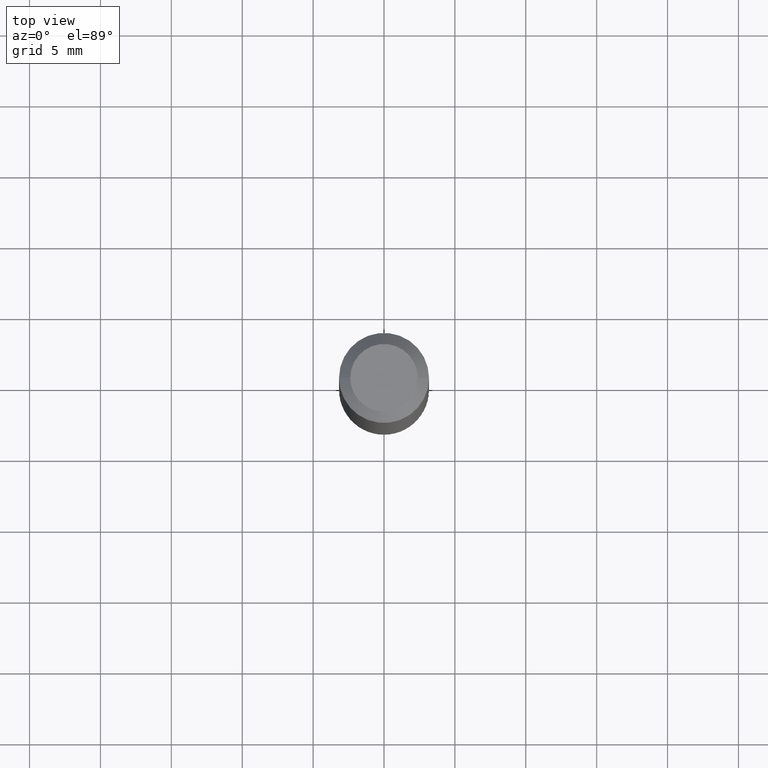
[diagram: clean part render]
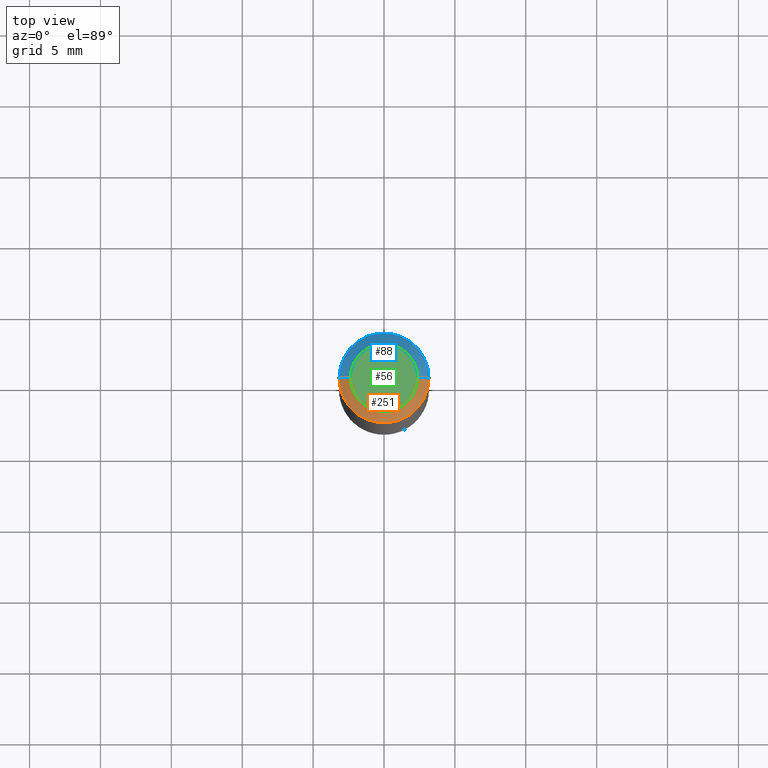
[diagram: same view with three faces highlighted in distinct colors, each labeled with its STEP entity id]
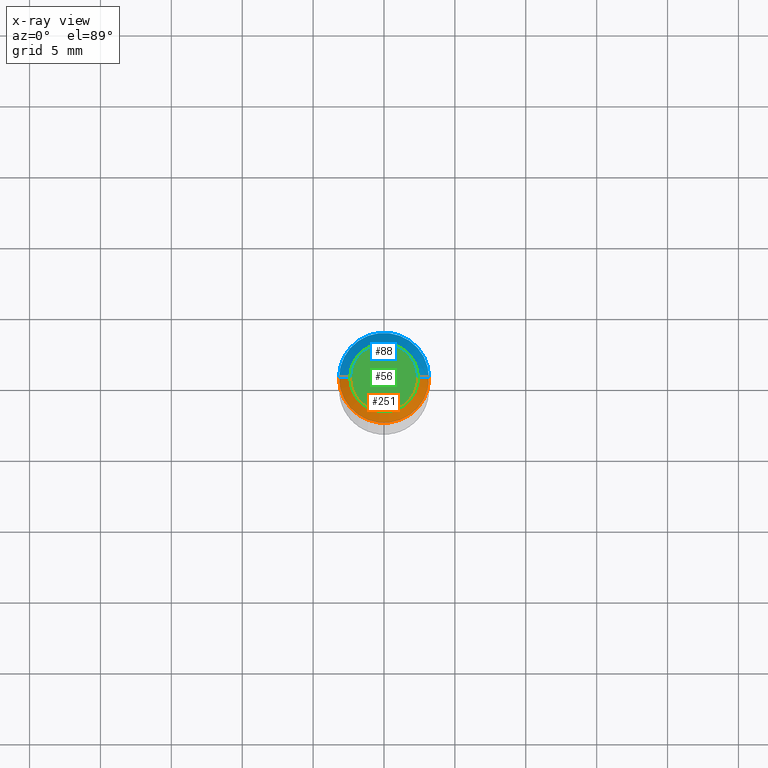
[diagram: x-ray of the same camera — body ghosted, the three highlighted faces saturated]
A machine part, top view with three faces highlighted in distinct colors.
The next image is the same camera in x-ray (body ghosted, the three faces saturated) — at least one of them is partly hidden behind the body in this view.
Their STEP definitions:

[orange] entity #251 — the highlighted conical surface has half-angle 45 deg.
#11 = VERTEX_POINT ( 'NONE', #14 ) ;
#14 = CARTESIAN_POINT ( 'NONE',  ( 0.1250000000000000000, -9.819791265496324395E-16, -0.03125000000000021511 ) ) ;
#26 = VERTEX_POINT ( 'NONE', #334 ) ;
#31 = ORIENTED_EDGE ( 'NONE', *, *, #133, .T. ) ;
#36 = DIRECTION ( 'NONE',  ( -2.445468806185136597E-29, 3.491481338843145583E-15, 1.000000000000000000 ) ) ;
#48 = VECTOR ( 'NONE', #156, 39.37007874015748143 ) ;
#66 = EDGE_CURVE ( 'NONE', #26, #213, #318, .T. ) ;
#67 = CARTESIAN_POINT ( 'NONE',  ( -0.1250000000000000000, 7.637615428719342382E-16, -0.03125000000000021511 ) ) ;
#72 = DIRECTION ( 'NONE',  ( 1.000000000000000000, -6.982962677686266711E-15, 4.875989565238656407E-29 ) ) ;
#77 = EDGE_CURVE ( 'NONE', #126, #11, #312, .T. ) ;
#110 = CONICAL_SURFACE ( 'NONE', #170, 0.1250000000000000000, 0.7853981633974449483 ) ;
#117 = ORIENTED_EDGE ( 'NONE', *, *, #77, .T. ) ;
#124 = FACE_OUTER_BOUND ( 'NONE', #361, .T. ) ;
#125 = EDGE_CURVE ( 'NONE', #213, #11, #343, .T. ) ;
#126 = VERTEX_POINT ( 'NONE', #143 ) ;
#129 = ORIENTED_EDGE ( 'NONE', *, *, #125, .F. ) ;
#133 = EDGE_CURVE ( 'NONE', #26, #126, #302, .T. ) ;
#138 = VECTOR ( 'NONE', #339, 39.37007874015748143 ) ;
#139 = CARTESIAN_POINT ( 'NONE',  ( 0.1250000000000000000, -9.666710415602905459E-16, -0.03125000000000021511 ) ) ;
#143 = CARTESIAN_POINT ( 'NONE',  ( -0.1250000000000000000, -2.526053894521113887E-15, -0.03125000000000021511 ) ) ;
#156 = DIRECTION ( 'NONE',  ( -0.7071067811865451302, 2.468850131082231817E-15, -0.7071067811865499042 ) ) ;
#170 = AXIS2_PLACEMENT_3D ( 'NONE', #199, #195, #396 ) ;
#192 = CARTESIAN_POINT ( 'NONE',  ( 0.09374999999999998612, -8.049213644256857164E-16, 3.827021247340580176E-18 ) ) ;
#195 = DIRECTION ( 'NONE',  ( 2.445468806185136597E-29, -3.491481338843145583E-15, -1.000000000000000000 ) ) ;
#199 = CARTESIAN_POINT ( 'NONE',  ( 7.642090019328604414E-31, -1.091087918388490513E-16, -0.03125000000000021511 ) ) ;
#213 = VERTEX_POINT ( 'NONE', #192 ) ;
#251 = ADVANCED_FACE ( 'NONE', ( #124 ), #110, .T. ) ;
#289 = ORIENTED_EDGE ( 'NONE', *, *, #66, .F. ) ;
#302 = LINE ( 'NONE', #67, #48 ) ;
#303 = DIRECTION ( 'NONE',  ( 1.000000000000000000, -6.982962677686266711E-15, 0.000000000000000000 ) ) ;
#312 = CIRCLE ( 'NONE', #340, 0.1250000000000000000 ) ;
#318 = CIRCLE ( 'NONE', #375, 0.09374999999999998612 ) ;
#326 = CARTESIAN_POINT ( 'NONE',  ( -9.358861080966640236E-47, 1.336197326842803670E-32, 3.827021247335477232E-18 ) ) ;
#328 = DIRECTION ( 'NONE',  ( -2.445468806185136597E-29, 3.491481338843145583E-15, 1.000000000000000000 ) ) ;
#331 = CARTESIAN_POINT ( 'NONE',  ( 7.642090019328604414E-31, -1.091087918388490513E-16, -0.03125000000000021511 ) ) ;
#334 = CARTESIAN_POINT ( 'NONE',  ( -0.09374999999999998612, 7.092071469525108711E-16, 3.827021247330707859E-18 ) ) ;
#339 = DIRECTION ( 'NONE',  ( 0.7071067811865451302, -7.319954787623248157E-15, -0.7071067811865499042 ) ) ;
#340 = AXIS2_PLACEMENT_3D ( 'NONE', #331, #328, #303 ) ;
#343 = LINE ( 'NONE', #139, #138 ) ;
#361 = EDGE_LOOP ( 'NONE', ( #129, #289, #31, #117 ) ) ;
#375 = AXIS2_PLACEMENT_3D ( 'NONE', #326, #36, #72 ) ;
#396 = DIRECTION ( 'NONE',  ( -1.000000000000000000, 6.982962677686266711E-15, 0.000000000000000000 ) ) ;

[blue] entity #88 — the highlighted conical surface has half-angle 45 deg.
#11 = VERTEX_POINT ( 'NONE', #14 ) ;
#13 = DIRECTION ( 'NONE',  ( -2.445468806185136597E-29, 3.491481338843145583E-15, 1.000000000000000000 ) ) ;
#14 = CARTESIAN_POINT ( 'NONE',  ( 0.1250000000000000000, -9.819791265496324395E-16, -0.03125000000000021511 ) ) ;
#26 = VERTEX_POINT ( 'NONE', #334 ) ;
#39 = EDGE_LOOP ( 'NONE', ( #285, #153, #118, #379 ) ) ;
#48 = VECTOR ( 'NONE', #156, 39.37007874015748143 ) ;
#49 = DIRECTION ( 'NONE',  ( 2.445468806185136597E-29, -3.491481338843145583E-15, -1.000000000000000000 ) ) ;
#67 = CARTESIAN_POINT ( 'NONE',  ( -0.1250000000000000000, 7.637615428719342382E-16, -0.03125000000000021511 ) ) ;
#78 = CARTESIAN_POINT ( 'NONE',  ( 7.642090019328604414E-31, -1.091087918388490513E-16, -0.03125000000000021511 ) ) ;
#88 = ADVANCED_FACE ( 'NONE', ( #109 ), #127, .T. ) ;
#104 = AXIS2_PLACEMENT_3D ( 'NONE', #277, #49, #209 ) ;
#106 = DIRECTION ( 'NONE',  ( 1.000000000000000000, -6.982962677686266711E-15, 4.875989565238656407E-29 ) ) ;
#109 = FACE_OUTER_BOUND ( 'NONE', #39, .T. ) ;
#118 = ORIENTED_EDGE ( 'NONE', *, *, #160, .T. ) ;
#120 = AXIS2_PLACEMENT_3D ( 'NONE', #78, #13, #391 ) ;
#125 = EDGE_CURVE ( 'NONE', #213, #11, #343, .T. ) ;
#126 = VERTEX_POINT ( 'NONE', #143 ) ;
#127 = CONICAL_SURFACE ( 'NONE', #104, 0.1250000000000000000, 0.7853981633974449483 ) ;
#133 = EDGE_CURVE ( 'NONE', #26, #126, #302, .T. ) ;
#138 = VECTOR ( 'NONE', #339, 39.37007874015748143 ) ;
#139 = CARTESIAN_POINT ( 'NONE',  ( 0.1250000000000000000, -9.666710415602905459E-16, -0.03125000000000021511 ) ) ;
#143 = CARTESIAN_POINT ( 'NONE',  ( -0.1250000000000000000, -2.526053894521113887E-15, -0.03125000000000021511 ) ) ;
#153 = ORIENTED_EDGE ( 'NONE', *, *, #125, .T. ) ;
#156 = DIRECTION ( 'NONE',  ( -0.7071067811865451302, 2.468850131082231817E-15, -0.7071067811865499042 ) ) ;
#160 = EDGE_CURVE ( 'NONE', #11, #126, #180, .T. ) ;
#180 = CIRCLE ( 'NONE', #120, 0.1250000000000000000 ) ;
#192 = CARTESIAN_POINT ( 'NONE',  ( 0.09374999999999998612, -8.049213644256857164E-16, 3.827021247340580176E-18 ) ) ;
#209 = DIRECTION ( 'NONE',  ( -1.000000000000000000, 6.982962677686266711E-15, 0.000000000000000000 ) ) ;
#211 = AXIS2_PLACEMENT_3D ( 'NONE', #234, #337, #106 ) ;
#213 = VERTEX_POINT ( 'NONE', #192 ) ;
#234 = CARTESIAN_POINT ( 'NONE',  ( -9.358861080966640236E-47, 1.336197326842803670E-32, 3.827021247335477232E-18 ) ) ;
#277 = CARTESIAN_POINT ( 'NONE',  ( 7.642090019328604414E-31, -1.091087918388490513E-16, -0.03125000000000021511 ) ) ;
#285 = ORIENTED_EDGE ( 'NONE', *, *, #338, .F. ) ;
#302 = LINE ( 'NONE', #67, #48 ) ;
#313 = CIRCLE ( 'NONE', #211, 0.09374999999999998612 ) ;
#334 = CARTESIAN_POINT ( 'NONE',  ( -0.09374999999999998612, 7.092071469525108711E-16, 3.827021247330707859E-18 ) ) ;
#337 = DIRECTION ( 'NONE',  ( -2.445468806185136597E-29, 3.491481338843145583E-15, 1.000000000000000000 ) ) ;
#338 = EDGE_CURVE ( 'NONE', #213, #26, #313, .T. ) ;
#339 = DIRECTION ( 'NONE',  ( 0.7071067811865451302, -7.319954787623248157E-15, -0.7071067811865499042 ) ) ;
#343 = LINE ( 'NONE', #139, #138 ) ;
#379 = ORIENTED_EDGE ( 'NONE', *, *, #133, .F. ) ;
#391 = DIRECTION ( 'NONE',  ( 1.000000000000000000, -6.982962677686266711E-15, 0.000000000000000000 ) ) ;

[green] entity #56 — the highlighted planar face has unit normal (0, -0, -1).
#26 = VERTEX_POINT ( 'NONE', #334 ) ;
#36 = DIRECTION ( 'NONE',  ( -2.445468806185136597E-29, 3.491481338843145583E-15, 1.000000000000000000 ) ) ;
#56 = ADVANCED_FACE ( 'NONE', ( #70 ), #167, .F. ) ;
#66 = EDGE_CURVE ( 'NONE', #26, #213, #318, .T. ) ;
#70 = FACE_OUTER_BOUND ( 'NONE', #181, .T. ) ;
#72 = DIRECTION ( 'NONE',  ( 1.000000000000000000, -6.982962677686266711E-15, 4.875989565238656407E-29 ) ) ;
#87 = AXIS2_PLACEMENT_3D ( 'NONE', #292, #196, #393 ) ;
#106 = DIRECTION ( 'NONE',  ( 1.000000000000000000, -6.982962677686266711E-15, 4.875989565238656407E-29 ) ) ;
#114 = ORIENTED_EDGE ( 'NONE', *, *, #338, .T. ) ;
#157 = ORIENTED_EDGE ( 'NONE', *, *, #66, .T. ) ;
#167 = PLANE ( 'NONE',  #87 ) ;
#181 = EDGE_LOOP ( 'NONE', ( #157, #114 ) ) ;
#192 = CARTESIAN_POINT ( 'NONE',  ( 0.09374999999999998612, -8.049213644256857164E-16, 3.827021247340580176E-18 ) ) ;
#196 = DIRECTION ( 'NONE',  ( 2.438088387897960049E-29, -3.491481338843145188E-15, -1.000000000000000000 ) ) ;
#211 = AXIS2_PLACEMENT_3D ( 'NONE', #234, #337, #106 ) ;
#213 = VERTEX_POINT ( 'NONE', #192 ) ;
#234 = CARTESIAN_POINT ( 'NONE',  ( -9.358861080966640236E-47, 1.336197326842803670E-32, 3.827021247335477232E-18 ) ) ;
#292 = CARTESIAN_POINT ( 'NONE',  ( -4.679430540483320118E-47, 6.680986634214018350E-33, 1.913510623667738616E-18 ) ) ;
#313 = CIRCLE ( 'NONE', #211, 0.09374999999999998612 ) ;
#318 = CIRCLE ( 'NONE', #375, 0.09374999999999998612 ) ;
#326 = CARTESIAN_POINT ( 'NONE',  ( -9.358861080966640236E-47, 1.336197326842803670E-32, 3.827021247335477232E-18 ) ) ;
#334 = CARTESIAN_POINT ( 'NONE',  ( -0.09374999999999998612, 7.092071469525108711E-16, 3.827021247330707859E-18 ) ) ;
#337 = DIRECTION ( 'NONE',  ( -2.445468806185136597E-29, 3.491481338843145583E-15, 1.000000000000000000 ) ) ;
#338 = EDGE_CURVE ( 'NONE', #213, #26, #313, .T. ) ;
#375 = AXIS2_PLACEMENT_3D ( 'NONE', #326, #36, #72 ) ;
#393 = DIRECTION ( 'NONE',  ( -1.000000000000000000, 6.982962677686265922E-15, -4.876176775795935793E-29 ) ) ;